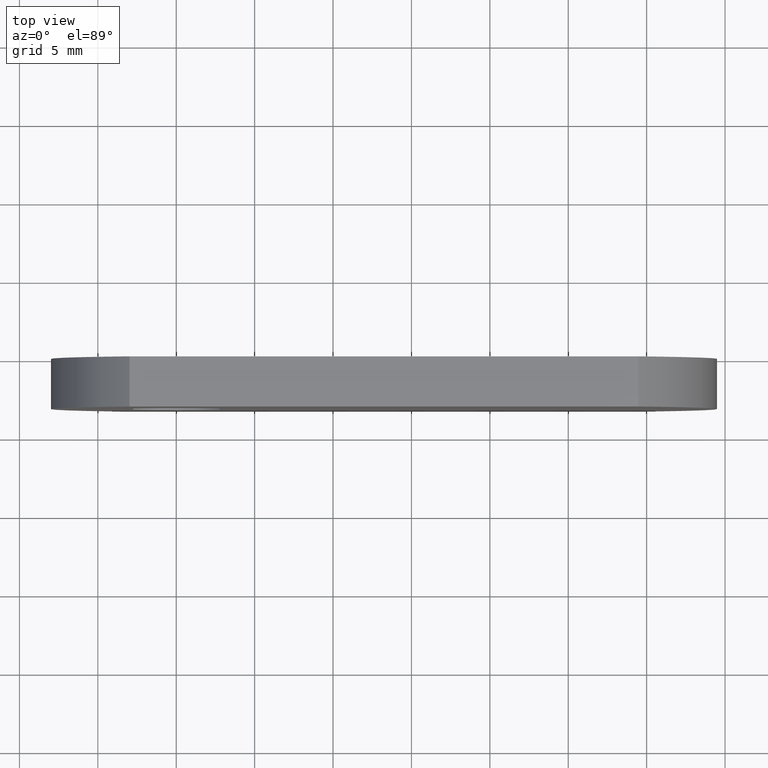
[diagram: clean part render]
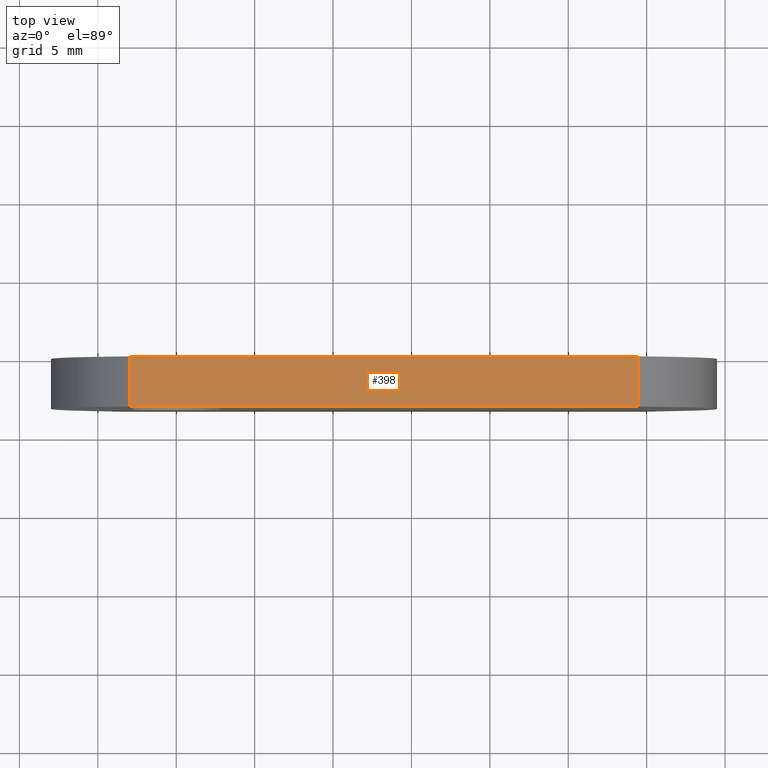
[diagram: same view with one face highlighted and labeled with its STEP entity id]
A machine part, top view. The second image highlights one B-rep face of the part: STEP entity #398.
In plain terms, the highlighted face is a freeform B-spline surface patch.
Its self-contained STEP definition (entity closure, byte-faithful):
#51=CARTESIAN_POINT('',(29.480740698407850,0.0,9.500000000000000));
#52=VERTEX_POINT('',#51);
#75=CARTESIAN_POINT('',(-2.980740698407840,0.0,9.500000000000000));
#76=VERTEX_POINT('',#75);
#92=CARTESIAN_POINT('',(29.480740698407850,0.0,9.500000000000000));
#93=CARTESIAN_POINT('',(-2.980740698407840,0.0,9.500000000000000));
#94=QUASI_UNIFORM_CURVE('',1,(#92,#93),.UNSPECIFIED.,.F.,.U.);
#95=EDGE_CURVE('',#52,#76,#94,.T.);
#157=CARTESIAN_POINT('',(29.480740698407850,-3.200000000000000,9.500000000000000));
#158=VERTEX_POINT('',#157);
#174=CARTESIAN_POINT('',(-2.980740698407840,-3.200000000000000,9.500000000000000));
#175=VERTEX_POINT('',#174);
#176=CARTESIAN_POINT('',(29.480740698407850,-3.200000000000000,9.500000000000000));
#177=CARTESIAN_POINT('',(-2.980740698407840,-3.200000000000000,9.500000000000000));
#178=QUASI_UNIFORM_CURVE('',1,(#176,#177),.UNSPECIFIED.,.F.,.U.);
#179=EDGE_CURVE('',#158,#175,#178,.T.);
#375=CARTESIAN_POINT('',(-2.980740698407840,-3.200000000000000,9.500000000000000));
#376=CARTESIAN_POINT('',(-2.980740698407840,0.0,9.500000000000000));
#377=QUASI_UNIFORM_CURVE('',1,(#375,#376),.UNSPECIFIED.,.F.,.U.);
#378=EDGE_CURVE('',#175,#76,#377,.T.);
#383=CARTESIAN_POINT('',(31.102192545437632,-3.359840053876400,9.500000000000000));
#384=CARTESIAN_POINT('',(-4.602192545437617,-3.359840053876400,9.500000000000000));
#385=CARTESIAN_POINT('',(31.102192545437632,0.159840082486629,9.500000000000000));
#386=CARTESIAN_POINT('',(-4.602192545437617,0.159840082486629,9.500000000000000));
#387=B_SPLINE_SURFACE_WITH_KNOTS('',1,1,((#383,#385),(#384,#386)),.UNSPECIFIED.,.F.,.F.,.U.,(2,2),(2,2),(0.0,35.704385090875249),(0.0,3.519680136363029),.UNSPECIFIED.);
#388=ORIENTED_EDGE('',*,*,#95,.T.);
#389=ORIENTED_EDGE('',*,*,#378,.F.);
#390=ORIENTED_EDGE('',*,*,#179,.F.);
#391=CARTESIAN_POINT('',(29.480740698407850,-3.200000000000000,9.500000000000000));
#392=CARTESIAN_POINT('',(29.480740698407850,0.0,9.500000000000000));
#393=QUASI_UNIFORM_CURVE('',1,(#391,#392),.UNSPECIFIED.,.F.,.U.);
#394=EDGE_CURVE('',#158,#52,#393,.T.);
#395=ORIENTED_EDGE('',*,*,#394,.T.);
#396=EDGE_LOOP('',(#388,#389,#390,#395));
#397=FACE_OUTER_BOUND('',#396,.T.);
#398=ADVANCED_FACE('',(#397),#387,.F.);